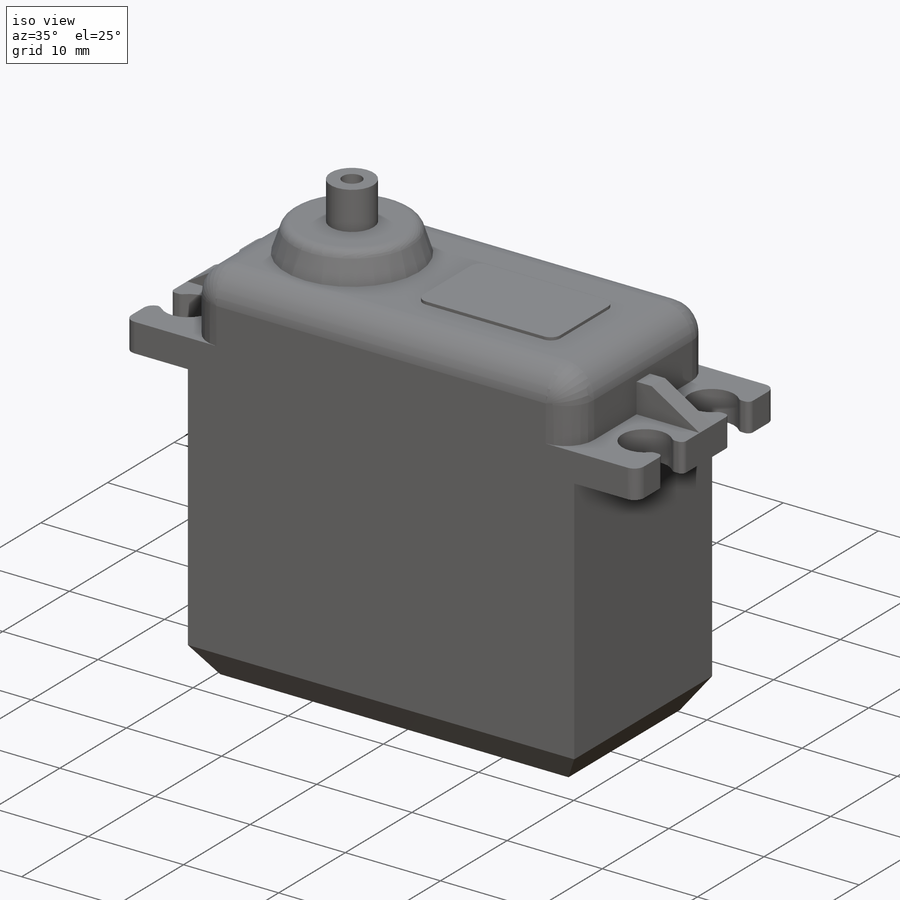
[diagram: iso view]
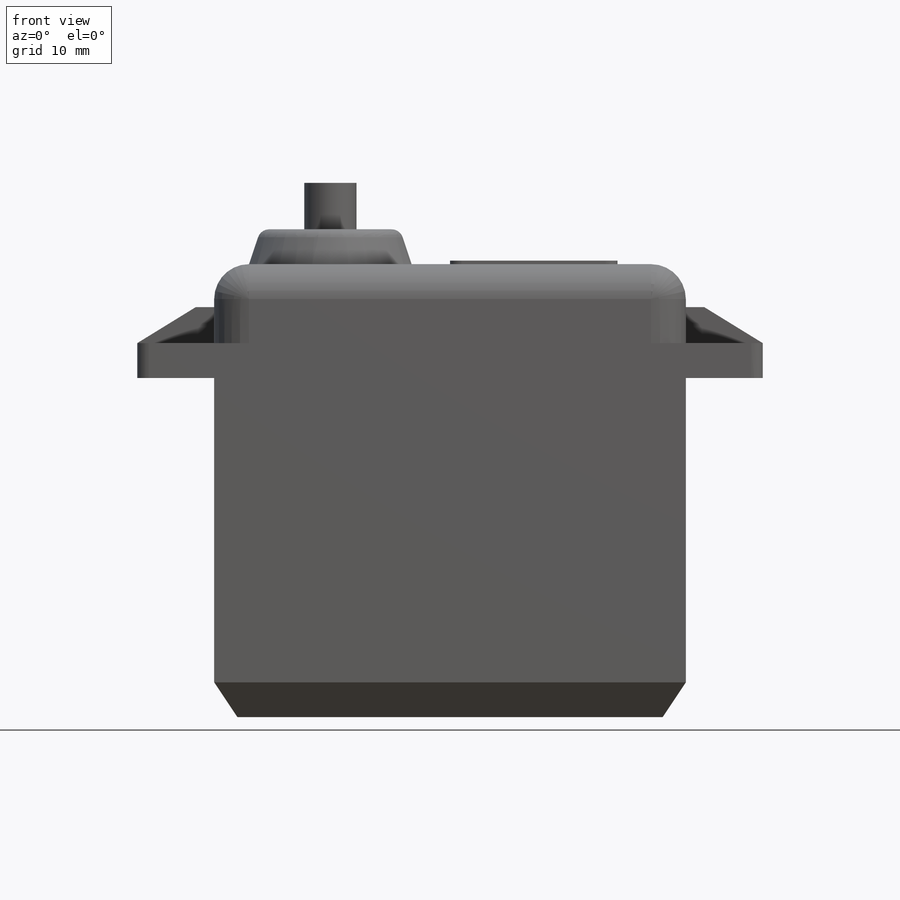
[diagram: front view]
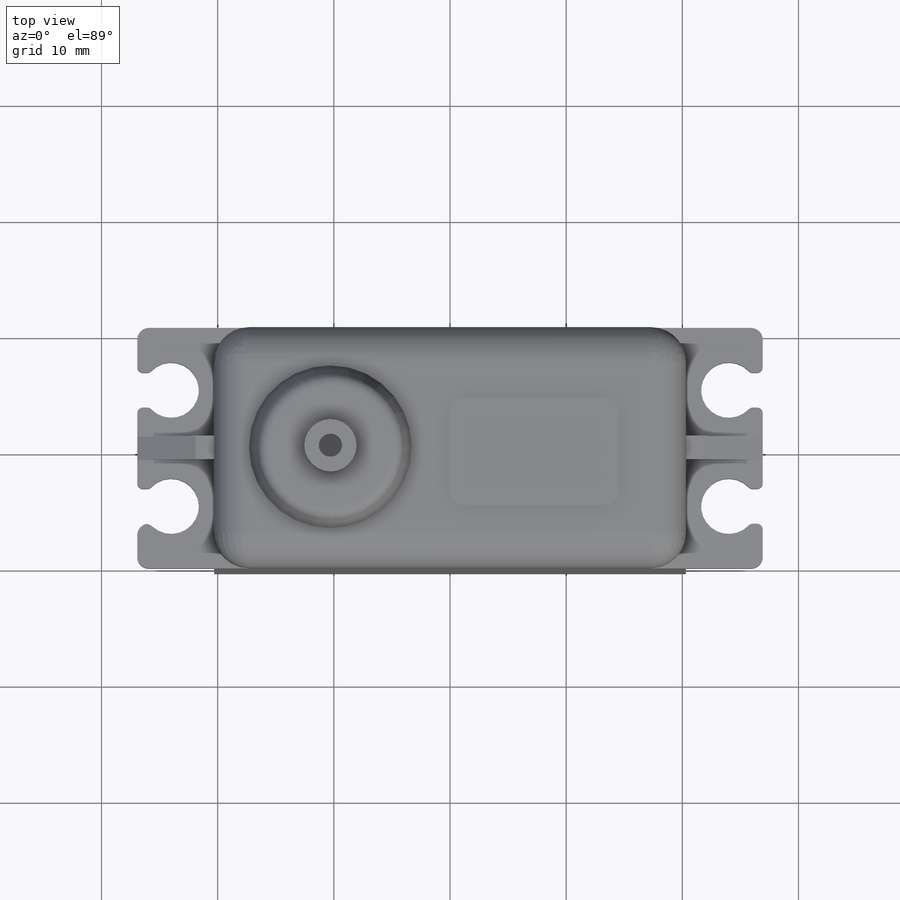
[diagram: top view]
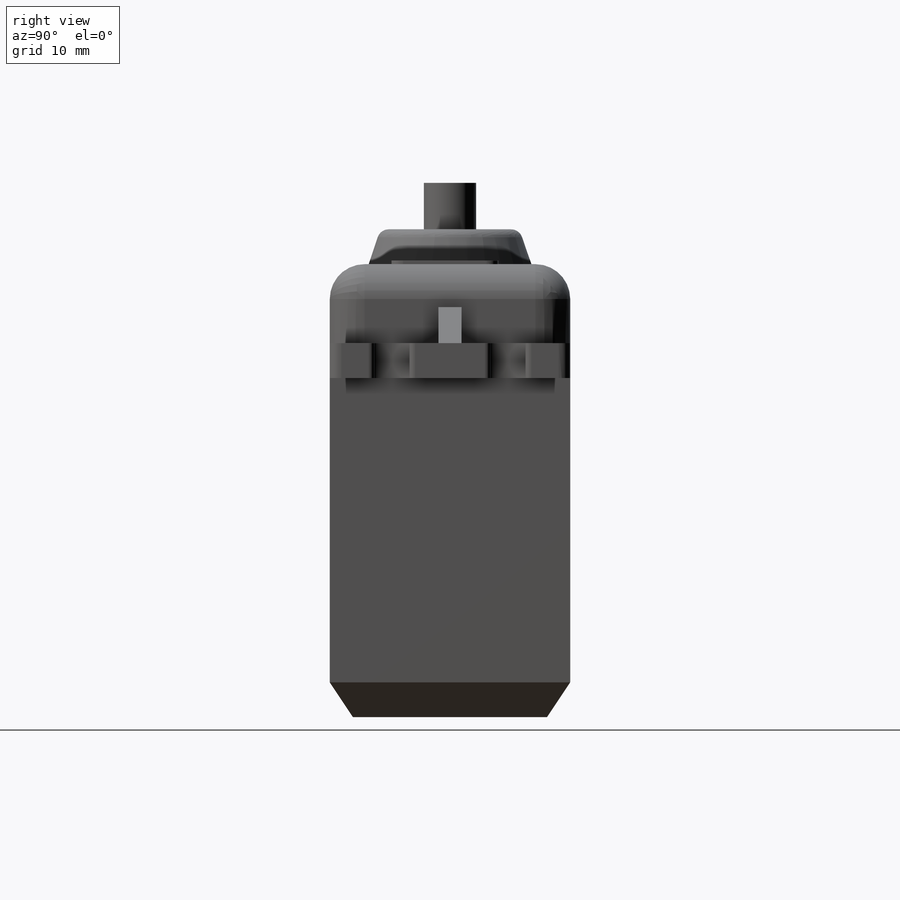
[diagram: right view]
SOLIDWORKS PART (.sldprt)
format: sldprt  version: not decoded by parser v0  size: 521,728 bytes
history: native  units: mm
features: sketch x15, fillet x8, extrude x7, plane x4, cut_extrude x3, mirror x2, material x1, chamfer x1 (+9 scaffold rows collapsed)
feature tree (50):
  scaffold x9  (default folders/planes/origin — collapsed)
  material  "Material <not specified>"
  plane  "Alzado"
  plane  "Planta"
  plane  "Vista lateral"
  sketch  "Sketch1"  dims[D1=36.6mm D2=16.7mm]
  extrude  "Boss-Extrude1"  Depth=3mm
  sketch  "Sketch2"  dims[D1=40.6mm D2=20.7mm]
  extrude  "Boss-Extrude2"  Depth=26.2mm
  chamfer  "Chamfer1"  Distance=3mm
  sketch  "Sketch3"  dims[D1=20.7mm D2=53.85mm]
  extrude  "Boss-Extrude3"  Depth=3mm
  sketch  "Sketch4"  dims[c1.D3=~4.506222mm c1.D5=4.7625mm c1.D6=4.7625mm c1.D7=6.35mm c1.D8=~6.768994mm c1.D1=48.0mm c1.D2=10.0mm c2.D3=2.925mm c2.D4=5.35mm c2.D1=~2.932698mm c3.D3=3.0mm c3.D7=3.0mm c3.D8=~23.992302mm c3.D1=24.0mm]
  cut_extrude  "Cut-Extrude2"  Depth=3mm
  mirror  "Mirror1"
  sketch  "Sketch5"  dims[D1=40.6mm]
  extrude  "Boss-Extrude4"  Depth=6.8mm
  sketch  "Sketch6"  dims[D1=2.0mm]
  extrude  "Boss-Extrude5"  Depth=3.1mm
  sketch  "Sketch7"
  cut_extrude  "Cut-Extrude3"  Depth=3.1mm
  mirror  "Mirror3"
  sketch  "Sketch8"  dims[c1.D1=14.0mm c1.D2=10.0mm c1.D3=10.3mm c2.D2=10.3mm]
  plane  "Plane1"  Offset=3mm
  sketch  "Sketch9"  dims[D1=12.0mm D2=10.3mm]
  fillet  "Fillet1"  Radius=1mm
  sketch  "Sketch10"  dims[D1=4.5mm]
  extrude  "Boss-Extrude6"  Depth=4mm
  fillet  "Fillet2"  Radius=3mm
  fillet  "Fillet3"  Radius=0.5mm
  fillet  "Fillet4"  Radius=0.5mm
  fillet  "Fillet5"  Radius=1mm
  sketch  "Sketch11"  dims[D1=2.0mm]
  cut_extrude  "Cut-Extrude4"  Depth=3mm
  sketch  "Sketch13"
  sketch  "Sketch15"
  fillet  "Fillet6"  Radius=3mm
  sketch  "Sketch16"
  extrude  "Boss-Extrude7"  Depth=0.3mm
  fillet  "Fillet7"  Radius=1mm
  fillet  "Fillet8"  Radius=1mm
  sketch  "Sketch17"
decode coverage: 29 of 36 modeling features carry decoded parameters
note: ~ marks probable driven/reference dimensions
note: suppression state not decoded; provenance and decode notes live in map.json
